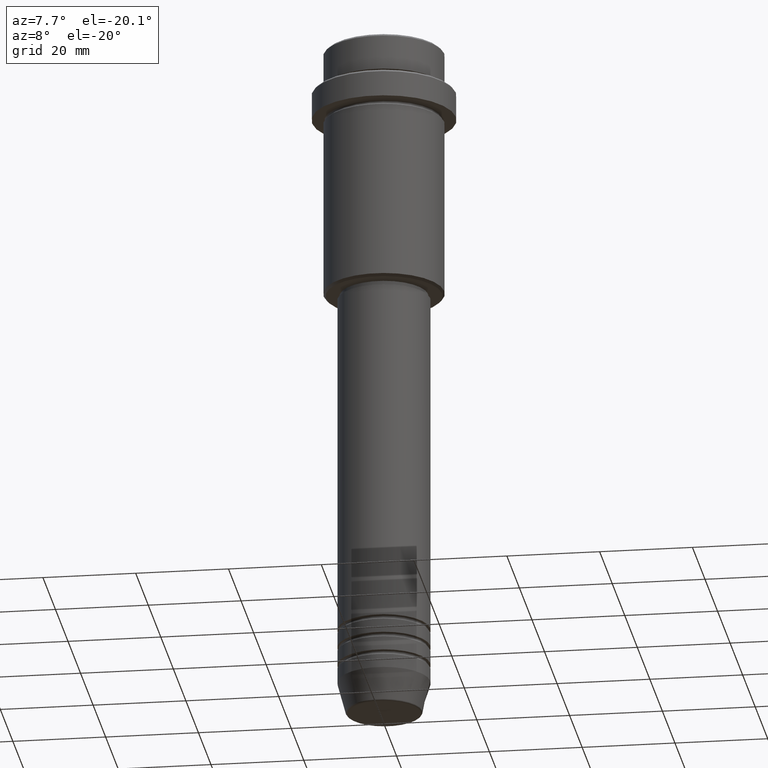
[diagram: clean part render]
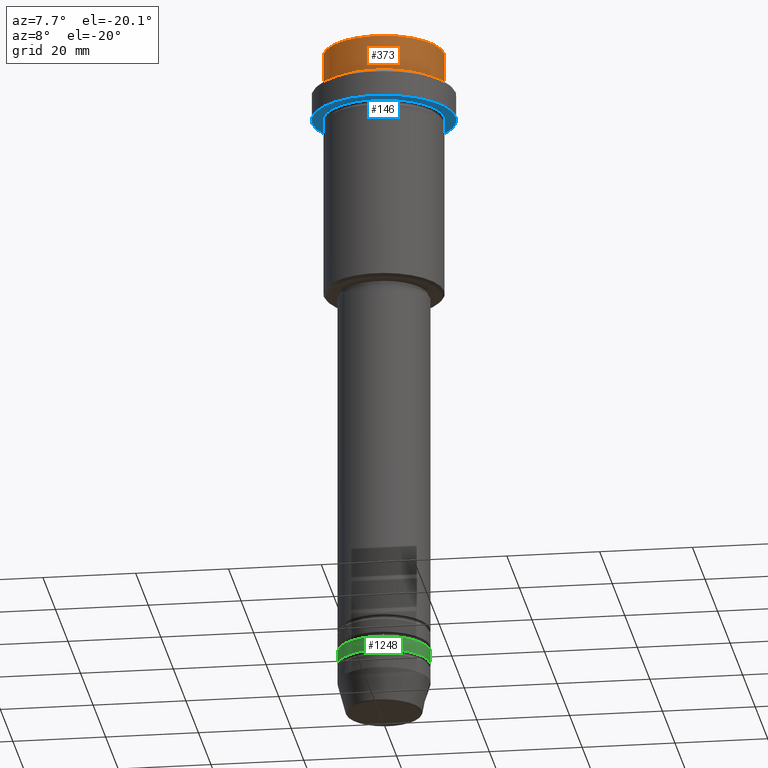
[diagram: same view with three faces highlighted in distinct colors, each labeled with its STEP entity id]
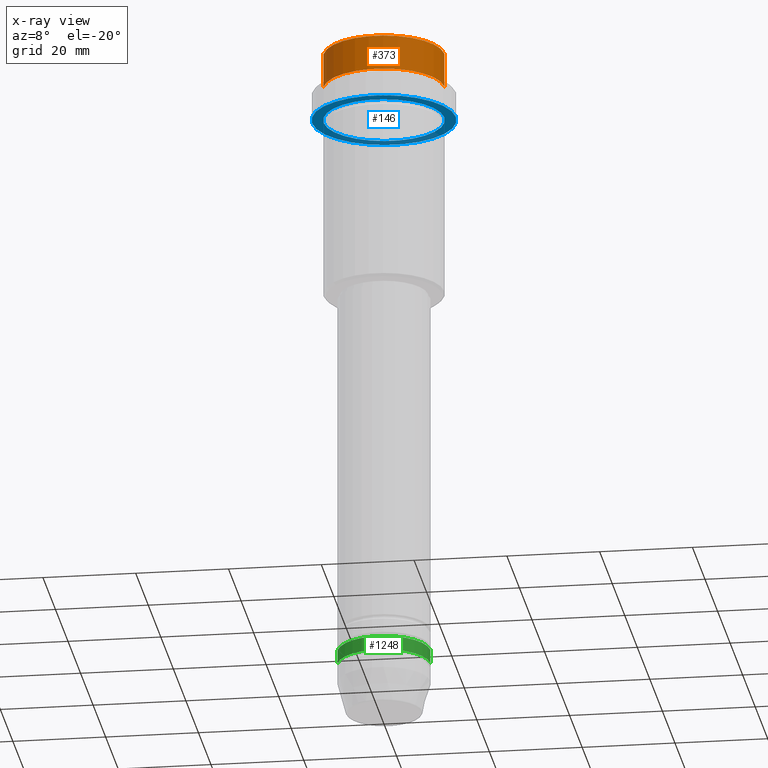
[diagram: x-ray of the same camera — body ghosted, the three highlighted faces saturated]
A machine part, auxiliary view with three faces highlighted in distinct colors.
The next image is the same camera in x-ray (body ghosted, the three faces saturated) — at least one of them is partly hidden behind the body in this view.
Their STEP definitions:

[orange] entity #373 — the highlighted cylindrical surface (partial cylindrical patch) has radius 13 mm, axis along (-0, -0, 1).
#11 = CARTESIAN_POINT ( 'NONE',  ( -12.99999999999999822, 1.592040838891558898E-15, 0.000000000000000000 ) ) ;
#16 = LINE ( 'NONE', #408, #835 ) ;
#55 = VERTEX_POINT ( 'NONE', #731 ) ;
#79 = ORIENTED_EDGE ( 'NONE', *, *, #288, .F. ) ;
#102 = DIRECTION ( 'NONE',  ( -0.000000000000000000, -0.000000000000000000, 1.000000000000000000 ) ) ;
#143 = VERTEX_POINT ( 'NONE', #768 ) ;
#155 = DIRECTION ( 'NONE',  ( -0.000000000000000000, -0.000000000000000000, 1.000000000000000000 ) ) ;
#158 = AXIS2_PLACEMENT_3D ( 'NONE', #312, #542, #862 ) ;
#228 = ORIENTED_EDGE ( 'NONE', *, *, #1281, .T. ) ;
#288 = EDGE_CURVE ( 'NONE', #143, #55, #1091, .T. ) ;
#312 = CARTESIAN_POINT ( 'NONE',  ( 0.000000000000000000, 0.000000000000000000, -0.4999999999999622524 ) ) ;
#342 = EDGE_LOOP ( 'NONE', ( #79, #1252, #228, #1114 ) ) ;
#373 = ADVANCED_FACE ( 'NONE', ( #1129 ), #926, .T. ) ;
#384 = VERTEX_POINT ( 'NONE', #608 ) ;
#392 = DIRECTION ( 'NONE',  ( 1.000000000000000000, 0.000000000000000000, 0.000000000000000000 ) ) ;
#397 = CIRCLE ( 'NONE', #834, 12.99999999999999822 ) ;
#408 = CARTESIAN_POINT ( 'NONE',  ( 12.99999999999999822, 0.000000000000000000, 0.000000000000000000 ) ) ;
#438 = CIRCLE ( 'NONE', #158, 12.99999999999999822 ) ;
#487 = EDGE_CURVE ( 'NONE', #384, #55, #438, .T. ) ;
#542 = DIRECTION ( 'NONE',  ( 0.000000000000000000, 0.000000000000000000, -1.000000000000000000 ) ) ;
#606 = CARTESIAN_POINT ( 'NONE',  ( 0.000000000000000000, 0.000000000000000000, -7.999999999999998224 ) ) ;
#608 = CARTESIAN_POINT ( 'NONE',  ( 12.99999999999999822, 0.000000000000000000, -0.4999999999999622524 ) ) ;
#731 = CARTESIAN_POINT ( 'NONE',  ( -12.99999999999999822, 1.592040838891558898E-15, -0.4999999999999622524 ) ) ;
#768 = CARTESIAN_POINT ( 'NONE',  ( -12.99999999999999822, 1.592040838891558898E-15, -7.999999999999998224 ) ) ;
#826 = EDGE_CURVE ( 'NONE', #143, #1133, #397, .T. ) ;
#834 = AXIS2_PLACEMENT_3D ( 'NONE', #606, #155, #1348 ) ;
#835 = VECTOR ( 'NONE', #954, 1000.000000000000000 ) ;
#862 = DIRECTION ( 'NONE',  ( 1.000000000000000000, 0.000000000000000000, 0.000000000000000000 ) ) ;
#926 = CYLINDRICAL_SURFACE ( 'NONE', #1053, 12.99999999999999822 ) ;
#954 = DIRECTION ( 'NONE',  ( -0.000000000000000000, -0.000000000000000000, 1.000000000000000000 ) ) ;
#1041 = DIRECTION ( 'NONE',  ( -0.000000000000000000, -0.000000000000000000, 1.000000000000000000 ) ) ;
#1053 = AXIS2_PLACEMENT_3D ( 'NONE', #1244, #1041, #392 ) ;
#1091 = LINE ( 'NONE', #11, #1097 ) ;
#1097 = VECTOR ( 'NONE', #102, 1000.000000000000000 ) ;
#1114 = ORIENTED_EDGE ( 'NONE', *, *, #487, .T. ) ;
#1129 = FACE_OUTER_BOUND ( 'NONE', #342, .T. ) ;
#1133 = VERTEX_POINT ( 'NONE', #1185 ) ;
#1185 = CARTESIAN_POINT ( 'NONE',  ( 12.99999999999999822, 0.000000000000000000, -7.999999999999998224 ) ) ;
#1244 = CARTESIAN_POINT ( 'NONE',  ( 0.000000000000000000, 0.000000000000000000, 0.000000000000000000 ) ) ;
#1252 = ORIENTED_EDGE ( 'NONE', *, *, #826, .T. ) ;
#1281 = EDGE_CURVE ( 'NONE', #1133, #384, #16, .T. ) ;
#1348 = DIRECTION ( 'NONE',  ( 1.000000000000000000, 0.000000000000000000, 0.000000000000000000 ) ) ;

[blue] entity #146 — the highlighted planar face has unit normal (0, 0, -1).
#37 = AXIS2_PLACEMENT_3D ( 'NONE', #198, #317, #1063 ) ;
#73 = DIRECTION ( 'NONE',  ( 1.000000000000000000, 0.000000000000000000, 0.000000000000000000 ) ) ;
#138 = VERTEX_POINT ( 'NONE', #646 ) ;
#146 = ADVANCED_FACE ( 'NONE', ( #414, #754 ), #512, .T. ) ;
#187 = DIRECTION ( 'NONE',  ( -0.000000000000000000, -0.000000000000000000, 1.000000000000000000 ) ) ;
#192 = EDGE_CURVE ( 'NONE', #235, #138, #483, .T. ) ;
#198 = CARTESIAN_POINT ( 'NONE',  ( 0.000000000000000000, 0.000000000000000000, -14.99999999999998579 ) ) ;
#215 = EDGE_CURVE ( 'NONE', #927, #868, #881, .T. ) ;
#235 = VERTEX_POINT ( 'NONE', #543 ) ;
#263 = ORIENTED_EDGE ( 'NONE', *, *, #593, .T. ) ;
#298 = CIRCLE ( 'NONE', #37, 12.99999999999999467 ) ;
#309 = CARTESIAN_POINT ( 'NONE',  ( 12.99999999999999467, 1.592040838891558504E-15, -14.99999999999998579 ) ) ;
#313 = CARTESIAN_POINT ( 'NONE',  ( 0.000000000000000000, 0.000000000000000000, -14.99999999999998579 ) ) ;
#317 = DIRECTION ( 'NONE',  ( -0.000000000000000000, -0.000000000000000000, 1.000000000000000000 ) ) ;
#329 = DIRECTION ( 'NONE',  ( -1.000000000000000000, 0.000000000000000000, -0.000000000000000000 ) ) ;
#404 = CARTESIAN_POINT ( 'NONE',  ( 0.000000000000000000, 0.000000000000000000, -14.99999999999998757 ) ) ;
#414 = FACE_BOUND ( 'NONE', #1263, .T. ) ;
#425 = DIRECTION ( 'NONE',  ( 0.000000000000000000, 0.000000000000000000, -1.000000000000000000 ) ) ;
#483 = CIRCLE ( 'NONE', #850, 15.50000000000000000 ) ;
#512 = PLANE ( 'NONE',  #619 ) ;
#543 = CARTESIAN_POINT ( 'NONE',  ( 15.50000000000000000, 0.000000000000000000, -14.99999999999998757 ) ) ;
#593 = EDGE_CURVE ( 'NONE', #868, #927, #298, .T. ) ;
#600 = CARTESIAN_POINT ( 'NONE',  ( -12.99999999999999467, 0.000000000000000000, -14.99999999999998579 ) ) ;
#619 = AXIS2_PLACEMENT_3D ( 'NONE', #1383, #425, #329 ) ;
#646 = CARTESIAN_POINT ( 'NONE',  ( -15.50000000000000000, 1.898202538678397557E-15, -14.99999999999998757 ) ) ;
#726 = CIRCLE ( 'NONE', #858, 15.50000000000000000 ) ;
#737 = ORIENTED_EDGE ( 'NONE', *, *, #1357, .F. ) ;
#754 = FACE_OUTER_BOUND ( 'NONE', #906, .T. ) ;
#760 = DIRECTION ( 'NONE',  ( -0.000000000000000000, -0.000000000000000000, 1.000000000000000000 ) ) ;
#850 = AXIS2_PLACEMENT_3D ( 'NONE', #872, #187, #73 ) ;
#858 = AXIS2_PLACEMENT_3D ( 'NONE', #404, #1363, #1023 ) ;
#868 = VERTEX_POINT ( 'NONE', #600 ) ;
#872 = CARTESIAN_POINT ( 'NONE',  ( 0.000000000000000000, 0.000000000000000000, -14.99999999999998757 ) ) ;
#881 = CIRCLE ( 'NONE', #1179, 12.99999999999999467 ) ;
#906 = EDGE_LOOP ( 'NONE', ( #1286, #737 ) ) ;
#927 = VERTEX_POINT ( 'NONE', #309 ) ;
#1023 = DIRECTION ( 'NONE',  ( 1.000000000000000000, 0.000000000000000000, 0.000000000000000000 ) ) ;
#1063 = DIRECTION ( 'NONE',  ( -1.000000000000000000, 0.000000000000000000, 0.000000000000000000 ) ) ;
#1085 = DIRECTION ( 'NONE',  ( -1.000000000000000000, 0.000000000000000000, 0.000000000000000000 ) ) ;
#1179 = AXIS2_PLACEMENT_3D ( 'NONE', #313, #760, #1085 ) ;
#1213 = ORIENTED_EDGE ( 'NONE', *, *, #215, .T. ) ;
#1263 = EDGE_LOOP ( 'NONE', ( #263, #1213 ) ) ;
#1286 = ORIENTED_EDGE ( 'NONE', *, *, #192, .F. ) ;
#1357 = EDGE_CURVE ( 'NONE', #138, #235, #726, .T. ) ;
#1363 = DIRECTION ( 'NONE',  ( -0.000000000000000000, -0.000000000000000000, 1.000000000000000000 ) ) ;
#1383 = CARTESIAN_POINT ( 'NONE',  ( 0.000000000000000000, 15.50000000000000000, -14.99999999999998579 ) ) ;

[green] entity #1248 — the highlighted cylindrical surface (partial cylindrical patch) has radius 10 mm, axis along (-0, -0, 1).
#20 = ORIENTED_EDGE ( 'NONE', *, *, #310, .F. ) ;
#25 = EDGE_CURVE ( 'NONE', #166, #1168, #1178, .T. ) ;
#48 = CARTESIAN_POINT ( 'NONE',  ( 10.00000000000000000, 0.000000000000000000, -138.9999999999998579 ) ) ;
#95 = ORIENTED_EDGE ( 'NONE', *, *, #1011, .T. ) ;
#101 = EDGE_LOOP ( 'NONE', ( #20, #1197, #95, #751 ) ) ;
#154 = CARTESIAN_POINT ( 'NONE',  ( 0.000000000000000000, 0.000000000000000000, -135.9999999999998579 ) ) ;
#166 = VERTEX_POINT ( 'NONE', #1175 ) ;
#169 = FACE_OUTER_BOUND ( 'NONE', #101, .T. ) ;
#197 = DIRECTION ( 'NONE',  ( -0.000000000000000000, -0.000000000000000000, 1.000000000000000000 ) ) ;
#232 = AXIS2_PLACEMENT_3D ( 'NONE', #943, #577, #508 ) ;
#244 = CARTESIAN_POINT ( 'NONE',  ( 10.00000000000000000, 0.000000000000000000, -135.9999999999998579 ) ) ;
#280 = DIRECTION ( 'NONE',  ( -0.000000000000000000, -0.000000000000000000, 1.000000000000000000 ) ) ;
#310 = EDGE_CURVE ( 'NONE', #459, #166, #799, .T. ) ;
#341 = DIRECTION ( 'NONE',  ( -0.000000000000000000, -0.000000000000000000, 1.000000000000000000 ) ) ;
#379 = DIRECTION ( 'NONE',  ( -0.000000000000000000, -0.000000000000000000, 1.000000000000000000 ) ) ;
#380 = VERTEX_POINT ( 'NONE', #48 ) ;
#422 = EDGE_CURVE ( 'NONE', #459, #380, #1315, .T. ) ;
#459 = VERTEX_POINT ( 'NONE', #1132 ) ;
#508 = DIRECTION ( 'NONE',  ( 1.000000000000000000, 0.000000000000000000, 0.000000000000000000 ) ) ;
#577 = DIRECTION ( 'NONE',  ( -0.000000000000000000, -0.000000000000000000, 1.000000000000000000 ) ) ;
#598 = AXIS2_PLACEMENT_3D ( 'NONE', #154, #379, #1043 ) ;
#694 = CARTESIAN_POINT ( 'NONE',  ( -10.00000000000000000, 1.224646799147353256E-15, 0.000000000000000000 ) ) ;
#724 = DIRECTION ( 'NONE',  ( 1.000000000000000000, 0.000000000000000000, 0.000000000000000000 ) ) ;
#751 = ORIENTED_EDGE ( 'NONE', *, *, #25, .F. ) ;
#799 = LINE ( 'NONE', #694, #928 ) ;
#928 = VECTOR ( 'NONE', #341, 1000.000000000000000 ) ;
#943 = CARTESIAN_POINT ( 'NONE',  ( 0.000000000000000000, 0.000000000000000000, 0.000000000000000000 ) ) ;
#1011 = EDGE_CURVE ( 'NONE', #380, #1168, #1173, .T. ) ;
#1043 = DIRECTION ( 'NONE',  ( 1.000000000000000000, 0.000000000000000000, 0.000000000000000000 ) ) ;
#1066 = CARTESIAN_POINT ( 'NONE',  ( 10.00000000000000000, 0.000000000000000000, 0.000000000000000000 ) ) ;
#1122 = AXIS2_PLACEMENT_3D ( 'NONE', #1238, #280, #724 ) ;
#1126 = CYLINDRICAL_SURFACE ( 'NONE', #232, 10.00000000000000000 ) ;
#1132 = CARTESIAN_POINT ( 'NONE',  ( -10.00000000000000000, 1.224646799147353256E-15, -138.9999999999998579 ) ) ;
#1168 = VERTEX_POINT ( 'NONE', #244 ) ;
#1173 = LINE ( 'NONE', #1066, #1405 ) ;
#1175 = CARTESIAN_POINT ( 'NONE',  ( -10.00000000000000000, 1.224646799147353256E-15, -135.9999999999998579 ) ) ;
#1178 = CIRCLE ( 'NONE', #598, 10.00000000000000000 ) ;
#1197 = ORIENTED_EDGE ( 'NONE', *, *, #422, .T. ) ;
#1238 = CARTESIAN_POINT ( 'NONE',  ( 0.000000000000000000, 0.000000000000000000, -138.9999999999998579 ) ) ;
#1248 = ADVANCED_FACE ( 'NONE', ( #169 ), #1126, .T. ) ;
#1315 = CIRCLE ( 'NONE', #1122, 10.00000000000000000 ) ;
#1405 = VECTOR ( 'NONE', #197, 1000.000000000000000 ) ;